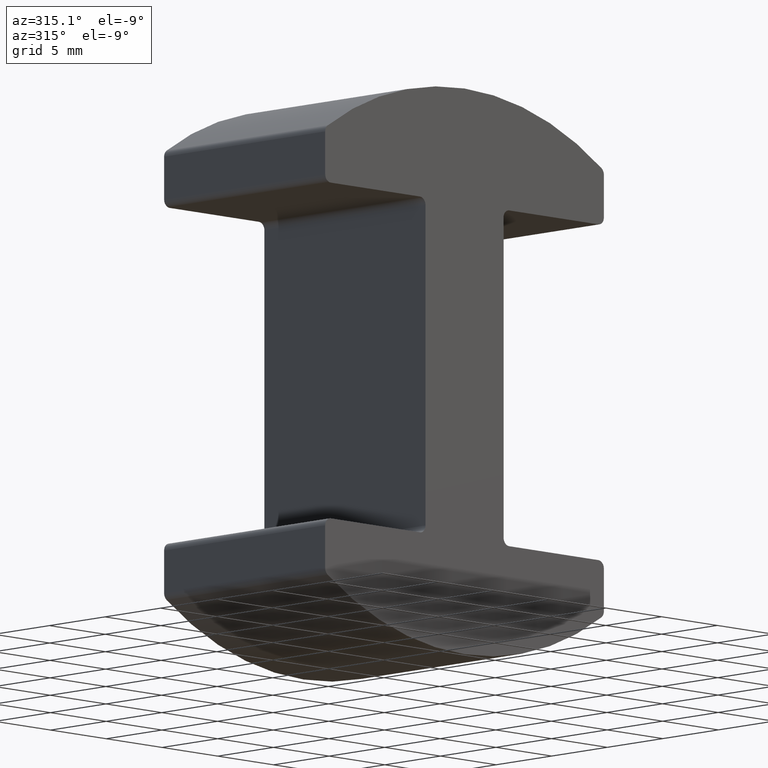
[diagram: clean part render]
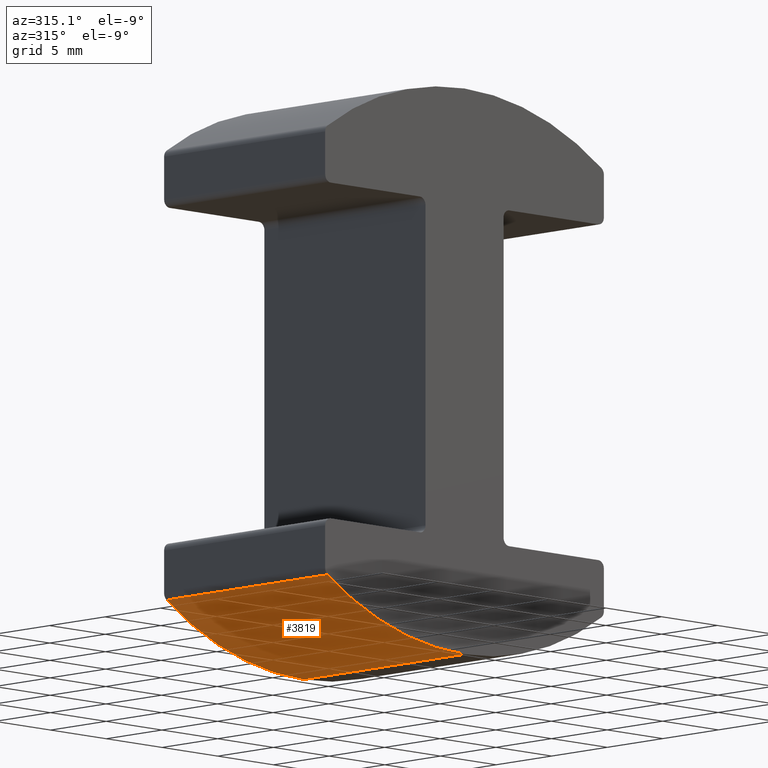
[diagram: same view with one face highlighted and labeled with its STEP entity id]
A machine part, auxiliary view. The second image highlights one B-rep face of the part: STEP entity #3819.
In plain terms, the highlighted cylindrical surface (partial cylindrical patch) has radius 22 mm, axis along (-0, -1, -0).
Its self-contained STEP definition (entity closure, byte-faithful):
#545 = CARTESIAN_POINT ( 'NONE',  ( -3.857428891191241400E-040, 7.250000000000000000, 3.803866990231672000 ) ) ;
#834 = EDGE_LOOP ( 'NONE', ( #3206, #5292, #2549, #3522 ) ) ;
#1750 = DIRECTION ( 'NONE',  ( -0.0000000000000000000, -1.000000000000000000, 0.0000000000000000000 ) ) ;
#2549 = ORIENTED_EDGE ( 'NONE', *, *, #10893, .F. ) ;
#2744 = LINE ( 'NONE', #11722, #11799 ) ;
#2758 = CARTESIAN_POINT ( 'NONE',  ( -3.857428891191241400E-040, -7.250000000000000000, 3.803866990231672000 ) ) ;
#2896 = DIRECTION ( 'NONE',  ( 0.0000000000000000000, 0.0000000000000000000, -1.000000000000000000 ) ) ;
#3025 = CARTESIAN_POINT ( 'NONE',  ( -12.27906976744186300, -7.250000000000000000, -14.45056933758451100 ) ) ;
#3206 = ORIENTED_EDGE ( 'NONE', *, *, #10412, .T. ) ;
#3522 = ORIENTED_EDGE ( 'NONE', *, *, #5888, .T. ) ;
#3819 = ADVANCED_FACE ( 'NONE', ( #9761 ), #4162, .T. ) ;
#4141 = LINE ( 'NONE', #12724, #11328 ) ;
#4162 = CYLINDRICAL_SURFACE ( 'NONE', #11156, 22.00000000000000000 ) ;
#5064 = CARTESIAN_POINT ( 'NONE',  ( -3.857428891191241400E-040, 7.250000000000000000, 3.803866990231672000 ) ) ;
#5292 = ORIENTED_EDGE ( 'NONE', *, *, #12968, .T. ) ;
#5501 = DIRECTION ( 'NONE',  ( 0.0000000000000000000, 0.0000000000000000000, -1.000000000000000000 ) ) ;
#5888 = EDGE_CURVE ( 'NONE', #13026, #10934, #4141, .T. ) ;
#6374 = VERTEX_POINT ( 'NONE', #10442 ) ;
#6918 = DIRECTION ( 'NONE',  ( -0.0000000000000000000, -1.000000000000000000, -0.0000000000000000000 ) ) ;
#7061 = CIRCLE ( 'NONE', #13127, 22.00000000000000000 ) ;
#7221 = DIRECTION ( 'NONE',  ( -0.0000000000000000000, -1.000000000000000000, 0.0000000000000000000 ) ) ;
#7253 = AXIS2_PLACEMENT_3D ( 'NONE', #2758, #1750, #2896 ) ;
#7589 = DIRECTION ( 'NONE',  ( 0.0000000000000000000, 1.000000000000000000, 0.0000000000000000000 ) ) ;
#8493 = DIRECTION ( 'NONE',  ( -0.0000000000000000000, -1.000000000000000000, -0.0000000000000000000 ) ) ;
#9761 = FACE_OUTER_BOUND ( 'NONE', #834, .T. ) ;
#10412 = EDGE_CURVE ( 'NONE', #10934, #6374, #7061, .T. ) ;
#10442 = CARTESIAN_POINT ( 'NONE',  ( -3.857428891191241400E-040, 7.250000000000000000, -18.19613300976832800 ) ) ;
#10893 = EDGE_CURVE ( 'NONE', #13026, #13092, #11358, .T. ) ;
#10934 = VERTEX_POINT ( 'NONE', #12039 ) ;
#11156 = AXIS2_PLACEMENT_3D ( 'NONE', #545, #8493, #5501 ) ;
#11328 = VECTOR ( 'NONE', #7589, 1000.000000000000000 ) ;
#11358 = CIRCLE ( 'NONE', #7253, 22.00000000000000000 ) ;
#11722 = CARTESIAN_POINT ( 'NONE',  ( -3.857428891191241400E-040, 7.250000000000000000, -18.19613300976832800 ) ) ;
#11799 = VECTOR ( 'NONE', #6918, 1000.000000000000000 ) ;
#12039 = CARTESIAN_POINT ( 'NONE',  ( -12.27906976744186300, 7.250000000000000000, -14.45056933758451100 ) ) ;
#12267 = DIRECTION ( 'NONE',  ( 0.0000000000000000000, 0.0000000000000000000, -1.000000000000000000 ) ) ;
#12429 = CARTESIAN_POINT ( 'NONE',  ( -3.857428891191241400E-040, -7.250000000000000000, -18.19613300976832800 ) ) ;
#12724 = CARTESIAN_POINT ( 'NONE',  ( -12.27906976744186100, 7.250000000000000000, -14.45056933758451100 ) ) ;
#12968 = EDGE_CURVE ( 'NONE', #6374, #13092, #2744, .T. ) ;
#13026 = VERTEX_POINT ( 'NONE', #3025 ) ;
#13092 = VERTEX_POINT ( 'NONE', #12429 ) ;
#13127 = AXIS2_PLACEMENT_3D ( 'NONE', #5064, #7221, #12267 ) ;